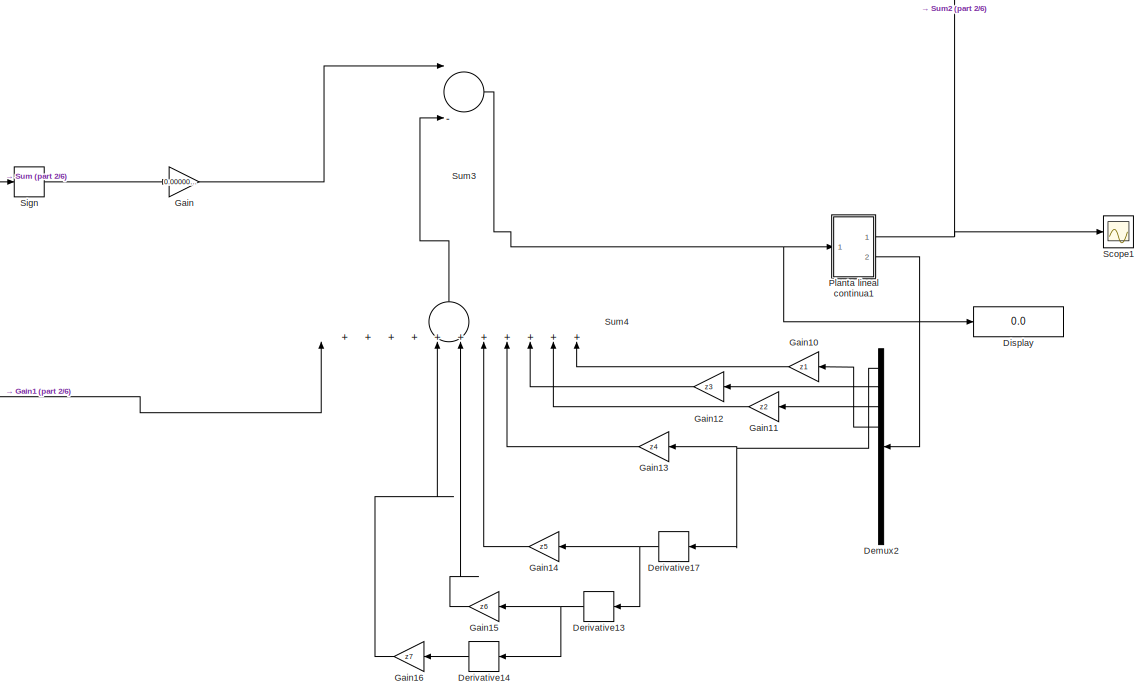
[diagram: root canvas - part 1/6, top left region]
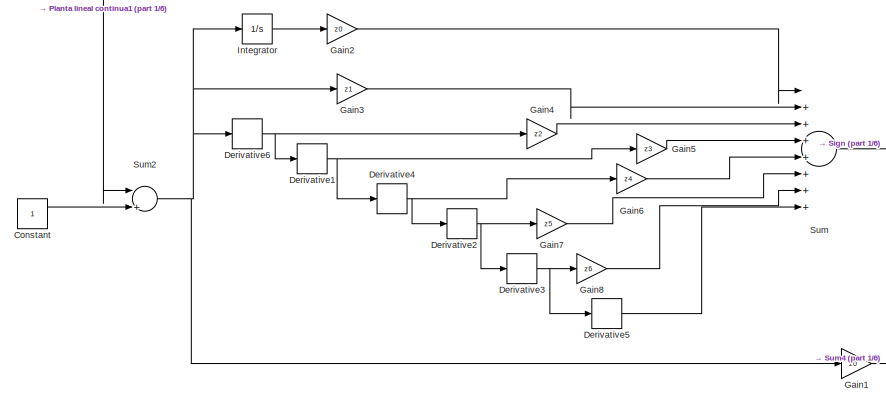
[diagram: root canvas - part 2/6, top left region]
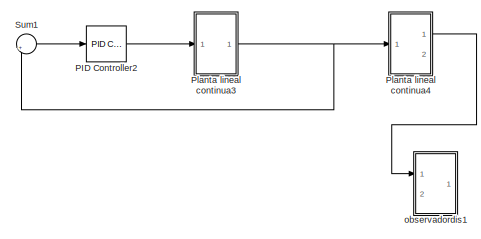
[diagram: root canvas - part 3/6, top right region]
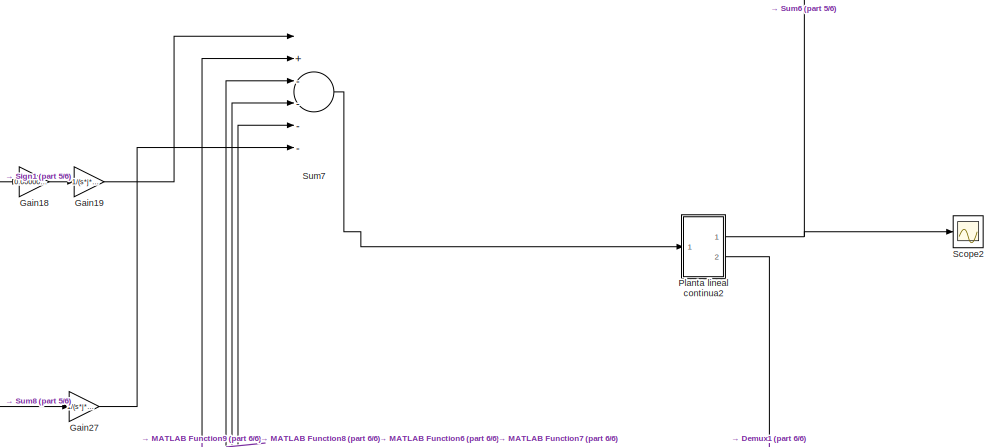
[diagram: root canvas - part 4/6, middle right region]
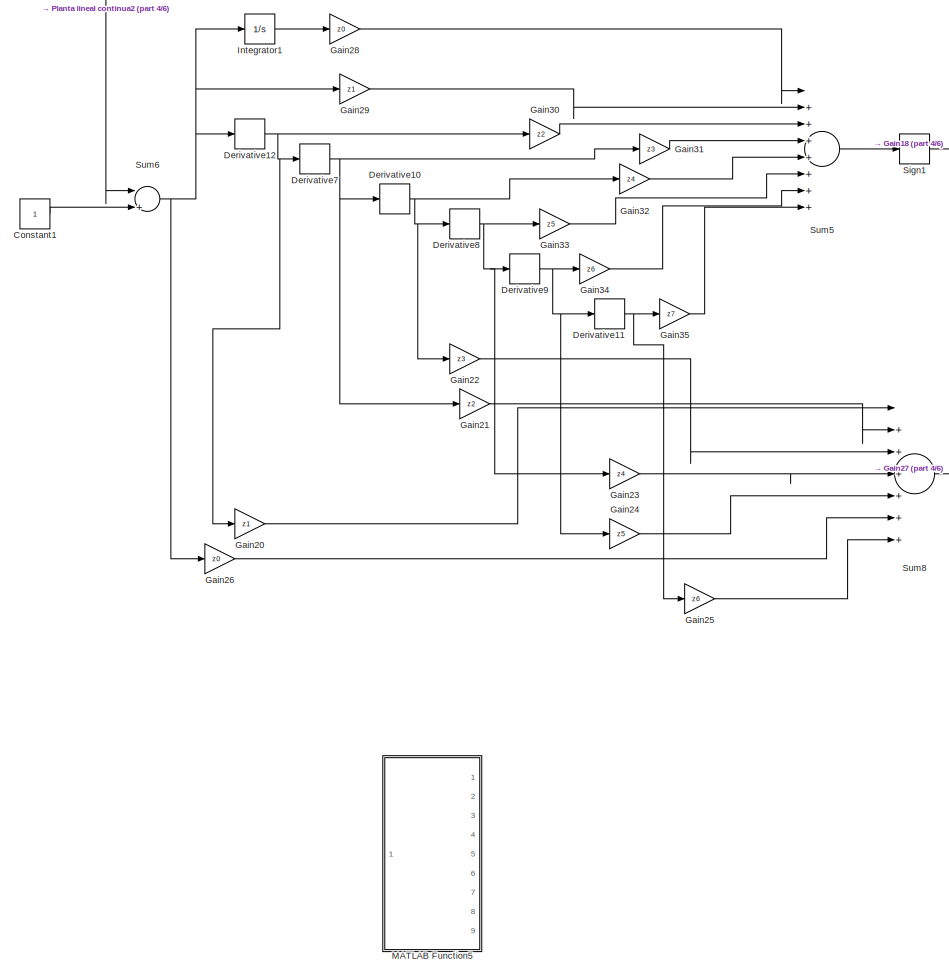
[diagram: root canvas - part 5/6, central region]
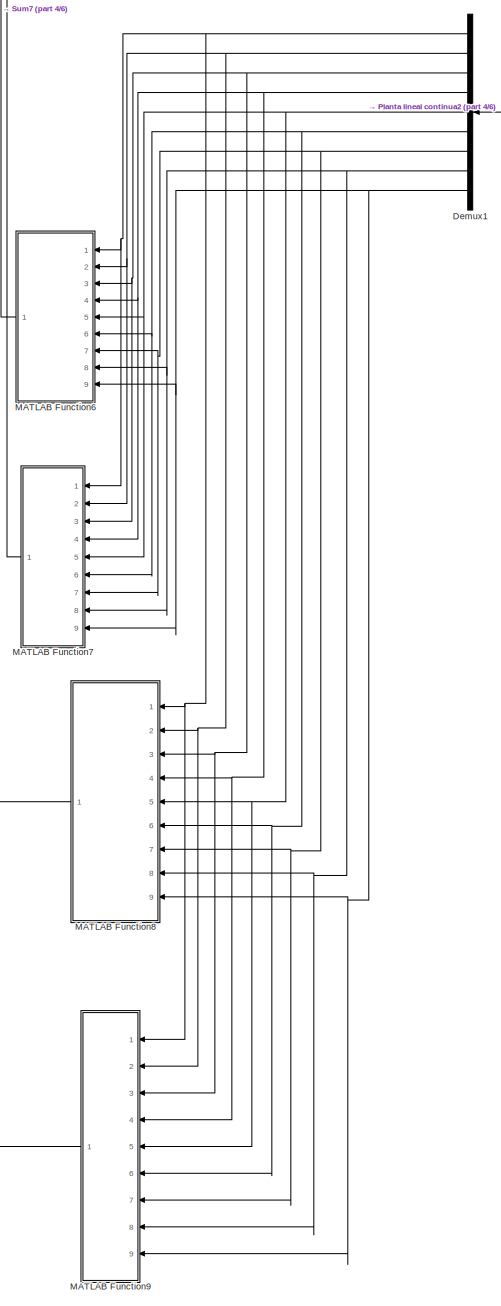
[diagram: root canvas - part 6/6, bottom right region]
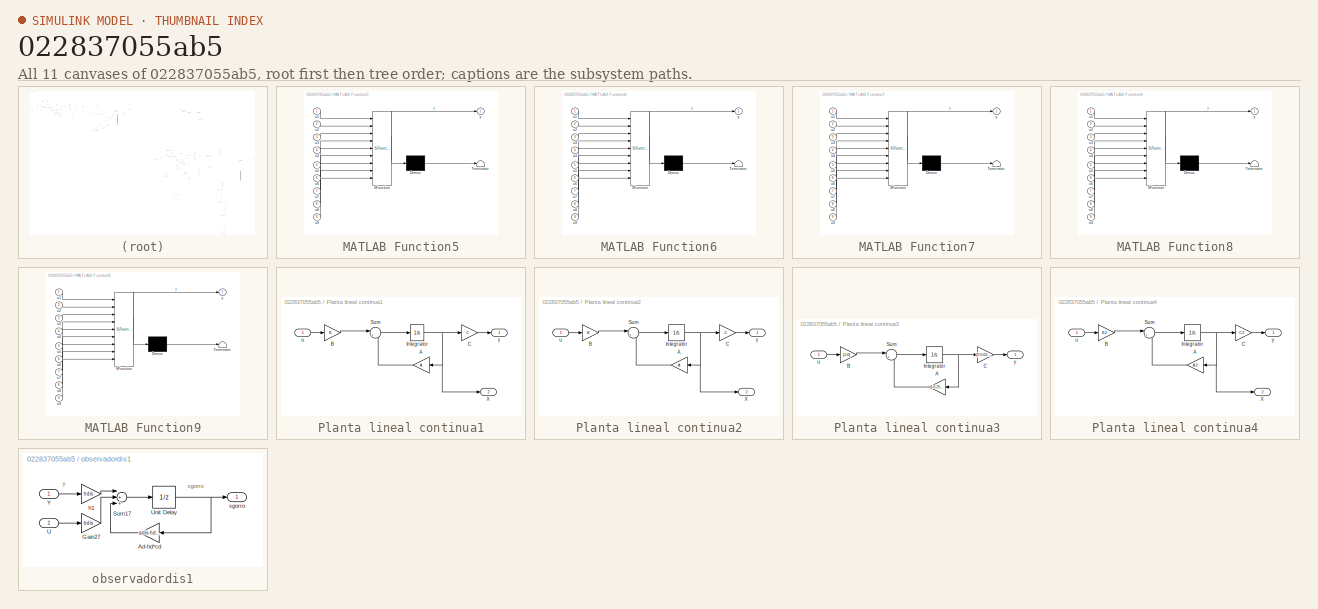
[diagram: thumbnail index - all 11 canvases of the model, root first then tree order]
MODEL slx_022837055ab5
KIND model
CONFIG AbsTol = auto
CONFIG EnableMultiTasking = off
CONFIG FixedStep = auto
CONFIG MaxStep = auto
CONFIG MinStep = auto
CONFIG RelTol = 1e-3
CONFIG SampleTimeConstraint = Unconstrained
CONFIG Solver = VariableStepAuto
CONFIG SolverName = VariableStepAuto
CONFIG StartTime = 0.0
CONFIG StopTime = 1
BLOCK [Constant] Constant
BLOCK [Constant] Constant1
  Commented = on
BLOCK [Demux] Demux1
  Commented = on
  DisplayOption = bar
  Outputs = 9
  Ports = [1, 9]
BLOCK [Demux] Demux2
  DisplayOption = bar
  Outputs = 9
  Ports = [1, 9]
BLOCK [Derivative] Derivative1
BLOCK [Derivative] Derivative10
  Commented = on
BLOCK [Derivative] Derivative11
  Commented = on
BLOCK [Derivative] Derivative12
  Commented = on
BLOCK [Derivative] Derivative13
BLOCK [Derivative] Derivative14
BLOCK [Derivative] Derivative17
BLOCK [Derivative] Derivative2
BLOCK [Derivative] Derivative3
BLOCK [Derivative] Derivative4
BLOCK [Derivative] Derivative5
BLOCK [Derivative] Derivative6
BLOCK [Derivative] Derivative7
  Commented = on
BLOCK [Derivative] Derivative8
  Commented = on
BLOCK [Derivative] Derivative9
  Commented = on
BLOCK [Display] Display
  Decimation = 1
  Ports = [1]
BLOCK [Gain] Gain
  Gain = 0.0000000000001
  OutDataTypeStr = Inherit: Inherit via internal rule
  ParamDataTypeStr = Inherit: Inherit via internal rule
  SaturateOnIntegerOverflow = off
BLOCK [Gain] Gain1
  Gain = z0
  OutDataTypeStr = Inherit: Inherit via internal rule
  ParamDataTypeStr = Inherit: Inherit via internal rule
  SaturateOnIntegerOverflow = off
BLOCK [Gain] Gain10
  Gain = z1
  OutDataTypeStr = Inherit: Inherit via internal rule
  ParamDataTypeStr = Inherit: Inherit via internal rule
  SaturateOnIntegerOverflow = off
BLOCK [Gain] Gain11
  Gain = z2
  OutDataTypeStr = Inherit: Inherit via internal rule
  ParamDataTypeStr = Inherit: Inherit via internal rule
  SaturateOnIntegerOverflow = off
BLOCK [Gain] Gain12
  Gain = z3
  OutDataTypeStr = Inherit: Inherit via internal rule
  ParamDataTypeStr = Inherit: Inherit via internal rule
  SaturateOnIntegerOverflow = off
BLOCK [Gain] Gain13
  Gain = z4
  OutDataTypeStr = Inherit: Inherit via internal rule
  ParamDataTypeStr = Inherit: Inherit via internal rule
  SaturateOnIntegerOverflow = off
BLOCK [Gain] Gain14
  Gain = z5
  OutDataTypeStr = Inherit: Inherit via internal rule
  ParamDataTypeStr = Inherit: Inherit via internal rule
  SaturateOnIntegerOverflow = off
BLOCK [Gain] Gain15
  Gain = z6
  OutDataTypeStr = Inherit: Inherit via internal rule
  ParamDataTypeStr = Inherit: Inherit via internal rule
  SaturateOnIntegerOverflow = off
BLOCK [Gain] Gain16
  Gain = z7
  OutDataTypeStr = Inherit: Inherit via internal rule
  ParamDataTypeStr = Inherit: Inherit via internal rule
  SaturateOnIntegerOverflow = off
BLOCK [Gain] Gain18
  Commented = on
  Gain = 0.0000000000001
  OutDataTypeStr = Inherit: Inherit via internal rule
  ParamDataTypeStr = Inherit: Inherit via internal rule
  SaturateOnIntegerOverflow = off
BLOCK [Gain] Gain19
  Commented = on
  Gain = 1/(s*j*i*h*g*a*g*o*v)
  OutDataTypeStr = Inherit: Inherit via internal rule
  ParamDataTypeStr = Inherit: Inherit via internal rule
  SaturateOnIntegerOverflow = off
BLOCK [Gain] Gain2
  Gain = z0
  OutDataTypeStr = Inherit: Inherit via internal rule
  ParamDataTypeStr = Inherit: Inherit via internal rule
  SaturateOnIntegerOverflow = off
BLOCK [Gain] Gain20
  Commented = on
  Gain = z1
  OutDataTypeStr = Inherit: Inherit via internal rule
  ParamDataTypeStr = Inherit: Inherit via internal rule
  SaturateOnIntegerOverflow = off
BLOCK [Gain] Gain21
  Commented = on
  Gain = z2
  OutDataTypeStr = Inherit: Inherit via internal rule
  ParamDataTypeStr = Inherit: Inherit via internal rule
  SaturateOnIntegerOverflow = off
BLOCK [Gain] Gain22
  Commented = on
  Gain = z3
  OutDataTypeStr = Inherit: Inherit via internal rule
  ParamDataTypeStr = Inherit: Inherit via internal rule
  SaturateOnIntegerOverflow = off
BLOCK [Gain] Gain23
  Commented = on
  Gain = z4
  OutDataTypeStr = Inherit: Inherit via internal rule
  ParamDataTypeStr = Inherit: Inherit via internal rule
  SaturateOnIntegerOverflow = off
BLOCK [Gain] Gain24
  Commented = on
  Gain = z5
  OutDataTypeStr = Inherit: Inherit via internal rule
  ParamDataTypeStr = Inherit: Inherit via internal rule
  SaturateOnIntegerOverflow = off
BLOCK [Gain] Gain25
  Commented = on
  Gain = z6
  OutDataTypeStr = Inherit: Inherit via internal rule
  ParamDataTypeStr = Inherit: Inherit via internal rule
  SaturateOnIntegerOverflow = off
BLOCK [Gain] Gain26
  Commented = on
  Gain = z0
  OutDataTypeStr = Inherit: Inherit via internal rule
  ParamDataTypeStr = Inherit: Inherit via internal rule
  SaturateOnIntegerOverflow = off
BLOCK [Gain] Gain27
  Commented = on
  Gain = 1/(s*j*i*h*g*a*g*o*v)
  OutDataTypeStr = Inherit: Inherit via internal rule
  ParamDataTypeStr = Inherit: Inherit via internal rule
  SaturateOnIntegerOverflow = off
BLOCK [Gain] Gain28
  Commented = on
  Gain = z0
  OutDataTypeStr = Inherit: Inherit via internal rule
  ParamDataTypeStr = Inherit: Inherit via internal rule
  SaturateOnIntegerOverflow = off
BLOCK [Gain] Gain29
  Commented = on
  Gain = z1
  OutDataTypeStr = Inherit: Inherit via internal rule
  ParamDataTypeStr = Inherit: Inherit via internal rule
  SaturateOnIntegerOverflow = off
BLOCK [Gain] Gain3
  Gain = z1
  OutDataTypeStr = Inherit: Inherit via internal rule
  ParamDataTypeStr = Inherit: Inherit via internal rule
  SaturateOnIntegerOverflow = off
BLOCK [Gain] Gain30
  Commented = on
  Gain = z2
  OutDataTypeStr = Inherit: Inherit via internal rule
  ParamDataTypeStr = Inherit: Inherit via internal rule
  SaturateOnIntegerOverflow = off
BLOCK [Gain] Gain31
  Commented = on
  Gain = z3
  OutDataTypeStr = Inherit: Inherit via internal rule
  ParamDataTypeStr = Inherit: Inherit via internal rule
  SaturateOnIntegerOverflow = off
BLOCK [Gain] Gain32
  Commented = on
  Gain = z4
  OutDataTypeStr = Inherit: Inherit via internal rule
  ParamDataTypeStr = Inherit: Inherit via internal rule
  SaturateOnIntegerOverflow = off
BLOCK [Gain] Gain33
  Commented = on
  Gain = z5
  OutDataTypeStr = Inherit: Inherit via internal rule
  ParamDataTypeStr = Inherit: Inherit via internal rule
  SaturateOnIntegerOverflow = off
BLOCK [Gain] Gain34
  Commented = on
  Gain = z6
  OutDataTypeStr = Inherit: Inherit via internal rule
  ParamDataTypeStr = Inherit: Inherit via internal rule
  SaturateOnIntegerOverflow = off
BLOCK [Gain] Gain35
  Commented = on
  Gain = z7
  OutDataTypeStr = Inherit: Inherit via internal rule
  ParamDataTypeStr = Inherit: Inherit via internal rule
  SaturateOnIntegerOverflow = off
BLOCK [Gain] Gain4
  Gain = z2
  OutDataTypeStr = Inherit: Inherit via internal rule
  ParamDataTypeStr = Inherit: Inherit via internal rule
  SaturateOnIntegerOverflow = off
BLOCK [Gain] Gain5
  Gain = z3
  OutDataTypeStr = Inherit: Inherit via internal rule
  ParamDataTypeStr = Inherit: Inherit via internal rule
  SaturateOnIntegerOverflow = off
BLOCK [Gain] Gain6
  Gain = z4
  OutDataTypeStr = Inherit: Inherit via internal rule
  ParamDataTypeStr = Inherit: Inherit via internal rule
  SaturateOnIntegerOverflow = off
BLOCK [Gain] Gain7
  Gain = z5
  OutDataTypeStr = Inherit: Inherit via internal rule
  ParamDataTypeStr = Inherit: Inherit via internal rule
  SaturateOnIntegerOverflow = off
BLOCK [Gain] Gain8
  Gain = z6
  OutDataTypeStr = Inherit: Inherit via internal rule
  ParamDataTypeStr = Inherit: Inherit via internal rule
  SaturateOnIntegerOverflow = off
BLOCK [Integrator] Integrator
  Ports = [1, 1]
BLOCK [Integrator] Integrator1
  Commented = on
  Ports = [1, 1]
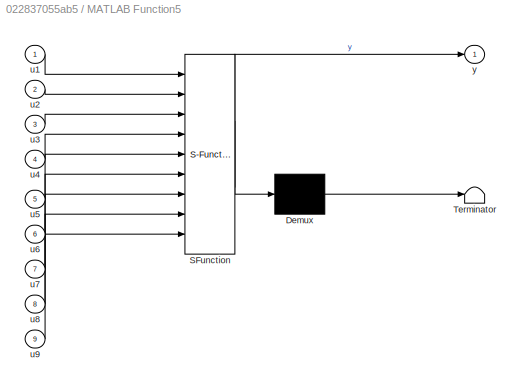
BLOCK [SubSystem] MATLAB Function5
  Commented = on
  ErrorFcn = Stateflow.Translate.translate
  PermitHierarchicalResolution = ExplicitOnly
  Ports = [9, 1]
  RequestExecContextInheritance = off
  SFBlockType = MATLAB Function
  TreatAsAtomicUnit = on
BLOCK [Demux] MATLAB Function5/ Demux 
  Outputs = 1
  Ports = [1, 1]
BLOCK [S-Function] MATLAB Function5/ SFunction 
  EnableBusSupport = on
  FunctionName = sf_sfun
  PortCounts = [9 2]
  Ports = [9, 2]
  SFcnIsStateOwnerBlock = off
  SFunctionDeploymentMode = off
  Tag = Stateflow S-Function funcion_5 6
BLOCK [Terminator] MATLAB Function5/ Terminator 
BLOCK [Inport] MATLAB Function5/u1
  IconDisplay = Port number
BLOCK [Inport] MATLAB Function5/u2
  IconDisplay = Port number
  Port = 2
BLOCK [Inport] MATLAB Function5/u3
  IconDisplay = Port number
  Port = 3
BLOCK [Inport] MATLAB Function5/u4
  IconDisplay = Port number
  Port = 4
BLOCK [Inport] MATLAB Function5/u5
  IconDisplay = Port number
  Port = 5
BLOCK [Inport] MATLAB Function5/u6
  IconDisplay = Port number
  Port = 6
BLOCK [Inport] MATLAB Function5/u7
  IconDisplay = Port number
  Port = 7
BLOCK [Inport] MATLAB Function5/u8
  IconDisplay = Port number
  Port = 8
BLOCK [Inport] MATLAB Function5/u9
  IconDisplay = Port number
  Port = 9
BLOCK [Outport] MATLAB Function5/y
  IconDisplay = Port number
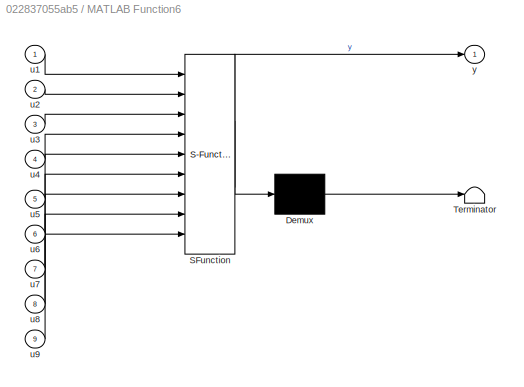
BLOCK [SubSystem] MATLAB Function6
  Commented = on
  ErrorFcn = Stateflow.Translate.translate
  PermitHierarchicalResolution = ExplicitOnly
  Ports = [9, 1]
  RequestExecContextInheritance = off
  SFBlockType = MATLAB Function
  TreatAsAtomicUnit = on
BLOCK [Demux] MATLAB Function6/ Demux 
  Outputs = 1
  Ports = [1, 1]
BLOCK [S-Function] MATLAB Function6/ SFunction 
  EnableBusSupport = on
  FunctionName = sf_sfun
  PortCounts = [9 2]
  Ports = [9, 2]
  SFcnIsStateOwnerBlock = off
  SFunctionDeploymentMode = off
  Tag = Stateflow S-Function funcion_5 7
BLOCK [Terminator] MATLAB Function6/ Terminator 
BLOCK [Inport] MATLAB Function6/u1
  IconDisplay = Port number
BLOCK [Inport] MATLAB Function6/u2
  IconDisplay = Port number
  Port = 2
BLOCK [Inport] MATLAB Function6/u3
  IconDisplay = Port number
  Port = 3
BLOCK [Inport] MATLAB Function6/u4
  IconDisplay = Port number
  Port = 4
BLOCK [Inport] MATLAB Function6/u5
  IconDisplay = Port number
  Port = 5
BLOCK [Inport] MATLAB Function6/u6
  IconDisplay = Port number
  Port = 6
BLOCK [Inport] MATLAB Function6/u7
  IconDisplay = Port number
  Port = 7
BLOCK [Inport] MATLAB Function6/u8
  IconDisplay = Port number
  Port = 8
BLOCK [Inport] MATLAB Function6/u9
  IconDisplay = Port number
  Port = 9
BLOCK [Outport] MATLAB Function6/y
  IconDisplay = Port number
BLOCK [SubSystem] MATLAB Function7
  Commented = on
  ErrorFcn = Stateflow.Translate.translate
  PermitHierarchicalResolution = ExplicitOnly
  Ports = [9, 1]
  RequestExecContextInheritance = off
  SFBlockType = MATLAB Function
  TreatAsAtomicUnit = on
BLOCK [Demux] MATLAB Function7/ Demux 
  Outputs = 1
  Ports = [1, 1]
BLOCK [S-Function] MATLAB Function7/ SFunction 
  EnableBusSupport = on
  FunctionName = sf_sfun
  PortCounts = [9 2]
  Ports = [9, 2]
  SFcnIsStateOwnerBlock = off
  SFunctionDeploymentMode = off
  Tag = Stateflow S-Function funcion_5 8
BLOCK [Terminator] MATLAB Function7/ Terminator 
BLOCK [Inport] MATLAB Function7/u1
  IconDisplay = Port number
BLOCK [Inport] MATLAB Function7/u2
  IconDisplay = Port number
  Port = 2
BLOCK [Inport] MATLAB Function7/u3
  IconDisplay = Port number
  Port = 3
BLOCK [Inport] MATLAB Function7/u4
  IconDisplay = Port number
  Port = 4
BLOCK [Inport] MATLAB Function7/u5
  IconDisplay = Port number
  Port = 5
BLOCK [Inport] MATLAB Function7/u6
  IconDisplay = Port number
  Port = 6
BLOCK [Inport] MATLAB Function7/u7
  IconDisplay = Port number
  Port = 7
BLOCK [Inport] MATLAB Function7/u8
  IconDisplay = Port number
  Port = 8
BLOCK [Inport] MATLAB Function7/u9
  IconDisplay = Port number
  Port = 9
BLOCK [Outport] MATLAB Function7/y
  IconDisplay = Port number
BLOCK [SubSystem] MATLAB Function8
  Commented = on
  ErrorFcn = Stateflow.Translate.translate
  PermitHierarchicalResolution = ExplicitOnly
  Ports = [9, 1]
  RequestExecContextInheritance = off
  SFBlockType = MATLAB Function
  TreatAsAtomicUnit = on
BLOCK [Demux] MATLAB Function8/ Demux 
  Outputs = 1
  Ports = [1, 1]
BLOCK [S-Function] MATLAB Function8/ SFunction 
  EnableBusSupport = on
  FunctionName = sf_sfun
  PortCounts = [9 2]
  Ports = [9, 2]
  SFcnIsStateOwnerBlock = off
  SFunctionDeploymentMode = off
  Tag = Stateflow S-Function funcion_5 9
BLOCK [Terminator] MATLAB Function8/ Terminator 
BLOCK [Inport] MATLAB Function8/u1
  IconDisplay = Port number
BLOCK [Inport] MATLAB Function8/u2
  IconDisplay = Port number
  Port = 2
BLOCK [Inport] MATLAB Function8/u3
  IconDisplay = Port number
  Port = 3
BLOCK [Inport] MATLAB Function8/u4
  IconDisplay = Port number
  Port = 4
BLOCK [Inport] MATLAB Function8/u5
  IconDisplay = Port number
  Port = 5
BLOCK [Inport] MATLAB Function8/u6
  IconDisplay = Port number
  Port = 6
BLOCK [Inport] MATLAB Function8/u7
  IconDisplay = Port number
  Port = 7
BLOCK [Inport] MATLAB Function8/u8
  IconDisplay = Port number
  Port = 8
BLOCK [Inport] MATLAB Function8/u9
  IconDisplay = Port number
  Port = 9
BLOCK [Outport] MATLAB Function8/y
  IconDisplay = Port number
BLOCK [SubSystem] MATLAB Function9
  Commented = on
  ErrorFcn = Stateflow.Translate.translate
  PermitHierarchicalResolution = ExplicitOnly
  Ports = [9, 1]
  RequestExecContextInheritance = off
  SFBlockType = MATLAB Function
  TreatAsAtomicUnit = on
BLOCK [Demux] MATLAB Function9/ Demux 
  Outputs = 1
  Ports = [1, 1]
BLOCK [S-Function] MATLAB Function9/ SFunction 
  EnableBusSupport = on
  FunctionName = sf_sfun
  PortCounts = [9 2]
  Ports = [9, 2]
  SFcnIsStateOwnerBlock = off
  SFunctionDeploymentMode = off
  Tag = Stateflow S-Function funcion_5 10
BLOCK [Terminator] MATLAB Function9/ Terminator 
BLOCK [Inport] MATLAB Function9/u1
  IconDisplay = Port number
BLOCK [Inport] MATLAB Function9/u2
  IconDisplay = Port number
  Port = 2
BLOCK [Inport] MATLAB Function9/u3
  IconDisplay = Port number
  Port = 3
BLOCK [Inport] MATLAB Function9/u4
  IconDisplay = Port number
  Port = 4
BLOCK [Inport] MATLAB Function9/u5
  IconDisplay = Port number
  Port = 5
BLOCK [Inport] MATLAB Function9/u6
  IconDisplay = Port number
  Port = 6
BLOCK [Inport] MATLAB Function9/u7
  IconDisplay = Port number
  Port = 7
BLOCK [Inport] MATLAB Function9/u8
  IconDisplay = Port number
  Port = 8
BLOCK [Inport] MATLAB Function9/u9
  IconDisplay = Port number
  Port = 9
BLOCK [Outport] MATLAB Function9/y
  IconDisplay = Port number
BLOCK [Reference] PID Controller2  REF=simulink/Continuous/PID Controller
  Commented = on
  Ports = [1, 1]
  SourceBlock = simulink/Continuous/PID Controller
  SourceProductBaseCode = SL
  SourceProductName = Simulink
  SourceType = PID 1dof
BLOCK [SubSystem] Planta lineal continua1
  Ports = [1, 2]
  RequestExecContextInheritance = off
BLOCK [Gain] Planta lineal continua1/A
  Gain = A
  Multiplication = Matrix(K*u) (u vector)
  OutDataTypeStr = Inherit: Inherit via internal rule
  ParamDataTypeStr = Inherit: Inherit via internal rule
  SaturateOnIntegerOverflow = off
BLOCK [Gain] Planta lineal continua1/B
  Gain = B
  Multiplication = Matrix(K*u) (u vector)
  OutDataTypeStr = Inherit: Inherit via internal rule
  ParamDataTypeStr = Inherit: Inherit via internal rule
  SaturateOnIntegerOverflow = off
BLOCK [Gain] Planta lineal continua1/C
  Gain = C
  Multiplication = Matrix(K*u) (u vector)
  OutDataTypeStr = Inherit: Inherit via internal rule
  ParamDataTypeStr = Inherit: Inherit via internal rule
  SaturateOnIntegerOverflow = off
BLOCK [Integrator] Planta lineal continua1/Integrator
  InitialCondition = 0.000001
  Ports = [1, 1]
BLOCK [Sum] Planta lineal continua1/Sum
  IconShape = round
  InputSameDT = off
  Inputs = |++
  OutDataTypeStr = Inherit: Inherit via internal rule
  Ports = [2, 1]
  SaturateOnIntegerOverflow = off
BLOCK [Outport] Planta lineal continua1/X
  IconDisplay = Port number
  Port = 2
BLOCK [Inport] Planta lineal continua1/u
  IconDisplay = Port number
BLOCK [Outport] Planta lineal continua1/y
  IconDisplay = Port number
BLOCK [SubSystem] Planta lineal continua2
  Commented = on
  Ports = [1, 2]
  RequestExecContextInheritance = off
BLOCK [Gain] Planta lineal continua2/A
  Gain = A
  Multiplication = Matrix(K*u) (u vector)
  OutDataTypeStr = Inherit: Inherit via internal rule
  ParamDataTypeStr = Inherit: Inherit via internal rule
  SaturateOnIntegerOverflow = off
BLOCK [Gain] Planta lineal continua2/B
  Gain = B
  Multiplication = Matrix(K*u) (u vector)
  OutDataTypeStr = Inherit: Inherit via internal rule
  ParamDataTypeStr = Inherit: Inherit via internal rule
  SaturateOnIntegerOverflow = off
BLOCK [Gain] Planta lineal continua2/C
  Gain = C
  Multiplication = Matrix(K*u) (u vector)
  OutDataTypeStr = Inherit: Inherit via internal rule
  ParamDataTypeStr = Inherit: Inherit via internal rule
  SaturateOnIntegerOverflow = off
BLOCK [Integrator] Planta lineal continua2/Integrator
  Ports = [1, 1]
BLOCK [Sum] Planta lineal continua2/Sum
  IconShape = round
  InputSameDT = off
  Inputs = |++
  OutDataTypeStr = Inherit: Inherit via internal rule
  Ports = [2, 1]
  SaturateOnIntegerOverflow = off
BLOCK [Outport] Planta lineal continua2/X
  IconDisplay = Port number
  Port = 2
BLOCK [Inport] Planta lineal continua2/u
  IconDisplay = Port number
BLOCK [Outport] Planta lineal continua2/y
  IconDisplay = Port number
BLOCK [SubSystem] Planta lineal continua3
  Commented = on
  Ports = [1, 1]
  RequestExecContextInheritance = off
BLOCK [Gain] Planta lineal continua3/A
  Gain = [[-0.25,-0.025];[1 0]]
  Multiplication = Matrix(K*u) (u vector)
  OutDataTypeStr = Inherit: Inherit via internal rule
  ParamDataTypeStr = Inherit: Inherit via internal rule
  SaturateOnIntegerOverflow = off
BLOCK [Gain] Planta lineal continua3/B
  Gain = [1;0]
  Multiplication = Matrix(K*u) (u vector)
  OutDataTypeStr = Inherit: Inherit via internal rule
  ParamDataTypeStr = Inherit: Inherit via internal rule
  SaturateOnIntegerOverflow = off
BLOCK [Gain] Planta lineal continua3/C
  Gain = [0 0.025]
  Multiplication = Matrix(K*u) (u vector)
  OutDataTypeStr = Inherit: Inherit via internal rule
  ParamDataTypeStr = Inherit: Inherit via internal rule
  SaturateOnIntegerOverflow = off
BLOCK [Integrator] Planta lineal continua3/Integrator
  Ports = [1, 1]
BLOCK [Sum] Planta lineal continua3/Sum
  IconShape = round
  InputSameDT = off
  Inputs = |++
  OutDataTypeStr = Inherit: Inherit via internal rule
  Ports = [2, 1]
  SaturateOnIntegerOverflow = off
BLOCK [Inport] Planta lineal continua3/u
  IconDisplay = Port number
BLOCK [Outport] Planta lineal continua3/y
  IconDisplay = Port number
BLOCK [SubSystem] Planta lineal continua4
  Commented = on
  Ports = [1, 2]
  RequestExecContextInheritance = off
BLOCK [Gain] Planta lineal continua4/A
  Gain = A2
  Multiplication = Matrix(K*u) (u vector)
  OutDataTypeStr = Inherit: Inherit via internal rule
  ParamDataTypeStr = Inherit: Inherit via internal rule
  SaturateOnIntegerOverflow = off
BLOCK [Gain] Planta lineal continua4/B
  Gain = B2
  Multiplication = Matrix(K*u) (u vector)
  OutDataTypeStr = Inherit: Inherit via internal rule
  ParamDataTypeStr = Inherit: Inherit via internal rule
  SaturateOnIntegerOverflow = off
BLOCK [Gain] Planta lineal continua4/C
  Gain = C2
  Multiplication = Matrix(K*u) (u vector)
  OutDataTypeStr = Inherit: Inherit via internal rule
  ParamDataTypeStr = Inherit: Inherit via internal rule
  SaturateOnIntegerOverflow = off
BLOCK [Integrator] Planta lineal continua4/Integrator
  Ports = [1, 1]
BLOCK [Sum] Planta lineal continua4/Sum
  IconShape = round
  InputSameDT = off
  Inputs = |++
  OutDataTypeStr = Inherit: Inherit via internal rule
  Ports = [2, 1]
  SaturateOnIntegerOverflow = off
BLOCK [Outport] Planta lineal continua4/X
  IconDisplay = Port number
  Port = 2
BLOCK [Inport] Planta lineal continua4/u
  IconDisplay = Port number
BLOCK [Outport] Planta lineal continua4/y
  IconDisplay = Port number
BLOCK [Scope] Scope1
  Floating = off
  NumInputPorts = 1
  Ports = [1]
  ScopeSpecificationString = Simulink.scopes.TimeScopeBlockCfg('CurrentConfiguration', extmgr.ConfigurationSet(extmgr.Configuration('Core','General UI',true),extmgr.Configuration('Core','Source UI',true),extmgr.Configuration('Sources','WiredSimulink',true,'DataLoggingVariableName','ScopeData1'),extmgr.Configuration('Visuals','Time Domain',true,'SerializedDisplays',{struct('MinYLimReal','0.00000000000011519999999999995','MaxYL...<+1599ch>
BLOCK [Scope] Scope2
  Commented = on
  Floating = off
  NumInputPorts = 1
  Ports = [1]
  ScopeSpecificationString = Simulink.scopes.TimeScopeBlockCfg('CurrentConfiguration', extmgr.ConfigurationSet(extmgr.Configuration('Core','General UI',true),extmgr.Configuration('Core','Source UI',true),extmgr.Configuration('Sources','WiredSimulink',true),extmgr.Configuration('Visuals','Time Domain',true,'SerializedDisplays',{struct('MinYLimReal','-18727581874838545331211490230263663827358826282343801671842188964971840685028...<+2925ch>
BLOCK [Signum] Sign
  ZeroCross = off
BLOCK [Signum] Sign1
  Commented = on
  ZeroCross = off
BLOCK [Sum] Sum
  InputSameDT = off
  Inputs = |++++++++
  OutDataTypeStr = Inherit: Inherit via internal rule
  Ports = [8, 1]
  SaturateOnIntegerOverflow = off
BLOCK [Sum] Sum1
  Commented = on
  IconShape = round
  InputSameDT = off
  Inputs = |+-
  OutDataTypeStr = Inherit: Inherit via internal rule
  Ports = [2, 1]
  SaturateOnIntegerOverflow = off
BLOCK [Sum] Sum2
  InputSameDT = off
  Inputs = |+-
  OutDataTypeStr = Inherit: Inherit via internal rule
  Ports = [2, 1]
  SaturateOnIntegerOverflow = off
BLOCK [Sum] Sum3
  InputSameDT = off
  Inputs = |--
  OutDataTypeStr = Inherit: Inherit via internal rule
  Ports = [2, 1]
  SaturateOnIntegerOverflow = off
BLOCK [Sum] Sum4
  InputSameDT = off
  Inputs = |++++++++++++
  OutDataTypeStr = Inherit: Inherit via internal rule
  Ports = [12, 1]
  SaturateOnIntegerOverflow = off
BLOCK [Sum] Sum5
  Commented = on
  InputSameDT = off
  Inputs = |++++++++
  OutDataTypeStr = Inherit: Inherit via internal rule
  Ports = [8, 1]
  SaturateOnIntegerOverflow = off
BLOCK [Sum] Sum6
  Commented = on
  InputSameDT = off
  Inputs = |+-
  OutDataTypeStr = Inherit: Inherit via internal rule
  Ports = [2, 1]
  SaturateOnIntegerOverflow = off
BLOCK [Sum] Sum7
  Commented = on
  InputSameDT = off
  Inputs = |+-----
  OutDataTypeStr = Inherit: Inherit via internal rule
  Ports = [6, 1]
  SaturateOnIntegerOverflow = off
BLOCK [Sum] Sum8
  Commented = on
  InputSameDT = off
  Inputs = |+++++++
  OutDataTypeStr = Inherit: Inherit via internal rule
  Ports = [7, 1]
  SaturateOnIntegerOverflow = off
BLOCK [SubSystem] observadordis1
  Commented = on
  Ports = [2, 1]
  RequestExecContextInheritance = off
BLOCK [Gain] observadordis1/Ad-hd*cd
  Gain = adis-hdis*cdis
  Multiplication = Matrix(K*u) (u vector)
  OutDataTypeStr = Inherit: Inherit via internal rule
  ParamDataTypeStr = Inherit: Inherit via internal rule
  SampleTime = tm
  SaturateOnIntegerOverflow = off
BLOCK [Gain] observadordis1/Gain27
  Gain = bdis
  Multiplication = Matrix(K*u) (u vector)
  OutDataTypeStr = Inherit: Inherit via internal rule
  ParamDataTypeStr = Inherit: Inherit via internal rule
  SampleTime = tm
  SaturateOnIntegerOverflow = off
BLOCK [Sum] observadordis1/Sum17
  InputSameDT = off
  Inputs = |+++
  OutDataTypeStr = Inherit: Inherit via internal rule
  Ports = [3, 1]
  SaturateOnIntegerOverflow = off
BLOCK [Inport] observadordis1/U
  IconDisplay = Port number
  Port = 2
BLOCK [UnitDelay] observadordis1/Unit Delay
  HasFrameUpgradeWarning = on
  SampleTime = tm
BLOCK [Inport] observadordis1/Y
  IconDisplay = Port number
BLOCK [Gain] observadordis1/h1
  Gain = hdis
  Multiplication = Matrix(K*u) (u vector)
  OutDataTypeStr = Inherit: Inherit via internal rule
  ParamDataTypeStr = Inherit: Inherit via internal rule
  SampleTime = tm
  SaturateOnIntegerOverflow = off
BLOCK [Outport] observadordis1/xgorro
  IconDisplay = Port number
ANNOTATION observadordis1: xgorro
ANNOTATION observadordis1: y
LINE Constant1:1 -> Sum6:2
LINE Constant:1 -> Sum2:2
NET Demux1:1 -> MATLAB Function6:1, MATLAB Function7:1, MATLAB Function8:1, MATLAB Function9:1
NET Demux1:2 -> MATLAB Function6:2, MATLAB Function7:2, MATLAB Function8:2, MATLAB Function9:2
NET Demux1:3 -> MATLAB Function6:3, MATLAB Function7:3, MATLAB Function8:3, MATLAB Function9:3
NET Demux1:4 -> MATLAB Function6:4, MATLAB Function7:4, MATLAB Function8:4, MATLAB Function9:4
NET Demux1:5 -> MATLAB Function6:5, MATLAB Function7:5, MATLAB Function8:5, MATLAB Function9:5
NET Demux1:6 -> MATLAB Function6:6, MATLAB Function7:6, MATLAB Function8:6, MATLAB Function9:6
NET Demux1:7 -> MATLAB Function6:7, MATLAB Function7:7, MATLAB Function8:7, MATLAB Function9:7
NET Demux1:8 -> MATLAB Function6:8, MATLAB Function7:8, MATLAB Function8:8, MATLAB Function9:8
NET Demux1:9 -> MATLAB Function6:9, MATLAB Function7:9, MATLAB Function8:9, MATLAB Function9:9
NET Demux2:1 -> Derivative17:1, Gain13:1
LINE Demux2:2 -> Gain12:1
LINE Demux2:3 -> Gain11:1
LINE Demux2:4 -> Gain10:1
NET Derivative10:1 -> Derivative8:1, Gain22:1, Gain32:1
NET Derivative11:1 -> Gain25:1, Gain35:1
NET Derivative12:1 -> Derivative7:1, Gain20:1, Gain30:1
NET Derivative13:1 -> Derivative14:1, Gain15:1
LINE Derivative14:1 -> Gain16:1
NET Derivative17:1 -> Derivative13:1, Gain14:1
NET Derivative1:1 -> Derivative4:1, Gain5:1
NET Derivative2:1 -> Derivative3:1, Gain7:1
NET Derivative3:1 -> Derivative5:1, Gain8:1
NET Derivative4:1 -> Derivative2:1, Gain6:1
LINE Derivative5:1 -> Sum:8
NET Derivative6:1 -> Derivative1:1, Gain4:1
NET Derivative7:1 -> Derivative10:1, Gain21:1, Gain31:1
NET Derivative8:1 -> Derivative9:1, Gain23:1, Gain33:1
NET Derivative9:1 -> Derivative11:1, Gain24:1, Gain34:1
LINE Gain10:1 -> Sum4:12
LINE Gain11:1 -> Sum4:11
LINE Gain12:1 -> Sum4:10
LINE Gain13:1 -> Sum4:9
LINE Gain14:1 -> Sum4:8
LINE Gain15:1 -> Sum4:7
LINE Gain16:1 -> Sum4:6
LINE Gain18:1 -> Gain19:1
LINE Gain19:1 -> Sum7:1
LINE Gain1:1 -> Sum4:1
LINE Gain20:1 -> Sum8:1
LINE Gain21:1 -> Sum8:2
LINE Gain22:1 -> Sum8:3
LINE Gain23:1 -> Sum8:4
LINE Gain24:1 -> Sum8:5
LINE Gain25:1 -> Sum8:7
LINE Gain26:1 -> Sum8:6
LINE Gain27:1 -> Sum7:6
LINE Gain28:1 -> Sum5:1
LINE Gain29:1 -> Sum5:2
LINE Gain2:1 -> Sum:1
LINE Gain30:1 -> Sum5:3
LINE Gain31:1 -> Sum5:4
LINE Gain32:1 -> Sum5:5
LINE Gain33:1 -> Sum5:6
LINE Gain34:1 -> Sum5:7
LINE Gain35:1 -> Sum5:8
LINE Gain3:1 -> Sum:2
LINE Gain4:1 -> Sum:3
LINE Gain5:1 -> Sum:4
LINE Gain6:1 -> Sum:5
LINE Gain7:1 -> Sum:6
LINE Gain8:1 -> Sum:7
LINE Gain:1 -> Sum3:1
LINE Integrator1:1 -> Gain28:1
LINE Integrator:1 -> Gain2:1
LINE MATLAB Function6:1 -> Sum7:4
LINE MATLAB Function7:1 -> Sum7:5
LINE MATLAB Function8:1 -> Sum7:3
LINE MATLAB Function9:1 -> Sum7:2
LINE PID Controller2:1 -> Planta lineal continua3:1
LINE Planta lineal continua1/A:1 -> Planta lineal continua1/Sum:2
LINE Planta lineal continua1/B:1 -> Planta lineal continua1/Sum:1
LINE Planta lineal continua1/C:1 -> Planta lineal continua1/y:1
NET Planta lineal continua1/Integrator:1 -> Planta lineal continua1/A:1, Planta lineal continua1/C:1, Planta lineal continua1/X:1
LINE Planta lineal continua1/Sum:1 -> Planta lineal continua1/Integrator:1
LINE Planta lineal continua1/u:1 -> Planta lineal continua1/B:1
NET Planta lineal continua1:1 -> Scope1:1, Sum2:1
LINE Planta lineal continua1:2 -> Demux2:1
LINE Planta lineal continua2/A:1 -> Planta lineal continua2/Sum:2
LINE Planta lineal continua2/B:1 -> Planta lineal continua2/Sum:1
LINE Planta lineal continua2/C:1 -> Planta lineal continua2/y:1
NET Planta lineal continua2/Integrator:1 -> Planta lineal continua2/A:1, Planta lineal continua2/C:1, Planta lineal continua2/X:1
LINE Planta lineal continua2/Sum:1 -> Planta lineal continua2/Integrator:1
LINE Planta lineal continua2/u:1 -> Planta lineal continua2/B:1
NET Planta lineal continua2:1 -> Scope2:1, Sum6:1
LINE Planta lineal continua2:2 -> Demux1:1
LINE Planta lineal continua3/A:1 -> Planta lineal continua3/Sum:2
LINE Planta lineal continua3/B:1 -> Planta lineal continua3/Sum:1
LINE Planta lineal continua3/C:1 -> Planta lineal continua3/y:1
NET Planta lineal continua3/Integrator:1 -> Planta lineal continua3/A:1, Planta lineal continua3/C:1
LINE Planta lineal continua3/Sum:1 -> Planta lineal continua3/Integrator:1
LINE Planta lineal continua3/u:1 -> Planta lineal continua3/B:1
NET Planta lineal continua3:1 -> Planta lineal continua4:1, Sum1:2
LINE Planta lineal continua4/A:1 -> Planta lineal continua4/Sum:2
LINE Planta lineal continua4/B:1 -> Planta lineal continua4/Sum:1
LINE Planta lineal continua4/C:1 -> Planta lineal continua4/y:1
NET Planta lineal continua4/Integrator:1 -> Planta lineal continua4/A:1, Planta lineal continua4/C:1, Planta lineal continua4/X:1
LINE Planta lineal continua4/Sum:1 -> Planta lineal continua4/Integrator:1
LINE Planta lineal continua4/u:1 -> Planta lineal continua4/B:1
LINE Planta lineal continua4:1 -> observadordis1:1
LINE Sign1:1 -> Gain18:1
LINE Sign:1 -> Gain:1
LINE Sum1:1 -> PID Controller2:1
NET Sum2:1 -> Derivative6:1, Gain1:1, Gain3:1, Integrator:1
NET Sum3:1 -> Display:1, Planta lineal continua1:1
LINE Sum4:1 -> Sum3:2
LINE Sum5:1 -> Sign1:1
NET Sum6:1 -> Derivative12:1, Gain26:1, Gain29:1, Integrator1:1
LINE Sum7:1 -> Planta lineal continua2:1
LINE Sum8:1 -> Gain27:1
LINE Sum:1 -> Sign:1
LINE observadordis1/Ad-hd*cd:1 -> observadordis1/Sum17:3
LINE observadordis1/Gain27:1 -> observadordis1/Sum17:2
LINE observadordis1/Sum17:1 -> observadordis1/Unit Delay:1
LINE observadordis1/U:1 -> observadordis1/Gain27:1
NET observadordis1/Unit Delay:1 -> observadordis1/Ad-hd*cd:1, observadordis1/xgorro:1
LINE observadordis1/Y:1 -> observadordis1/h1:1
LINE observadordis1/h1:1 -> observadordis1/Sum17:1
note: NET lines group one-source signal fan-out (src -> all destinations, sorted); 1:1 wires keep LINE
CHART MATLAB Function5 states=1 transitions=1
  STATE_LABEL 'eML_blk_kernel()'
  STATE_LABEL 'SCRIPT:\nfunction y = fcn(u1,u2,u3,u4,u5,u6,u7,u8,u9)\n  a=1.1520e-07\n b=-2.0000e-01\n c=-1.6000e-02  \n d=-6.4000e-04  \n e=-1.2800e-05  \n f=-1.0240e-07 \n g=2.5000e-02\n h=1.0000e+00\n i=1.0000e+00\n j=1.0000e+00\n k=1.0000e+00\n l=-2.5000e-01\n m=-3.3141e+00\n n=-4.3146e+00\n o=1.0000e+00\n p=1.0000e+00\n q=-2.9862e+00\n r=-4.3146e+00\n s=-3.1408e-02\n t=1.3156e+02\n u=1.1945e+02\n v=1.2563e+00\ny = s*j*i*h*g*a*a*(a...<+175ch>'
CHART MATLAB Function6 states=1 transitions=1
  STATE_LABEL 'eML_blk_kernel()'
  STATE_LABEL 'SCRIPT:\nfunction y = fcn(u1,u2,u3,u4,u5,u6,u7,u8,u9)\na=1.1520e-07\n b=-2.0000e-01\n c=-1.6000e-02  \n d=-6.4000e-04  \n e=-1.2800e-05  \n f=-1.0240e-07 \n g=2.5000e-02\n h=1.0000e+00\n i=1.0000e+00\n j=1.0000e+00\n k=1.0000e+00\n l=-2.5000e-01\n m=-3.3141e+00\n n=-4.3146e+00\n o=1.0000e+00\n p=1.0000e+00\n q=-2.9862e+00\n r=-4.3146e+00\n s=-3.1408e-02\n t=1.3156e+02\n u=1.1945e+02\n v=1.2563e+00\ny = a/(g*o*v)*(a*u1+b*...<+25ch>'
CHART MATLAB Function7 states=1 transitions=1
  STATE_LABEL 'eML_blk_kernel()'
  STATE_LABEL 'SCRIPT:\nfunction y = fcn(u1,u2,u3,u4,u5,u6,u7,u8,u9)\na=1.1520e-07\n b=-2.0000e-01\n c=-1.6000e-02  \n d=-6.4000e-04  \n e=-1.2800e-05  \n f=-1.0240e-07 \n g=2.5000e-02\n h=1.0000e+00\n i=1.0000e+00\n j=1.0000e+00\n k=1.0000e+00\n l=-2.5000e-01\n m=-3.3141e+00\n n=-4.3146e+00\n o=1.0000e+00\n p=1.0000e+00\n q=-2.9862e+00\n r=-4.3146e+00\n s=-3.1408e-02\n t=1.3156e+02\n u=1.1945e+02\n v=1.2563e+00\ny = 1/(g*o*v)*(b*g*u1+...<+30ch>'
CHART MATLAB Function8 states=1 transitions=1
  STATE_LABEL 'eML_blk_kernel()'
  STATE_LABEL 'SCRIPT:\nfunction y= fcn(u1,u2,u3,u4,u5,u6,u7,u8,u9)\na=1.1520e-07\n b=-2.0000e-01\n c=-1.6000e-02  \n d=-6.4000e-04  \n e=-1.2800e-05  \n f=-1.0240e-07 \n g=2.5000e-02\n h=1.0000e+00\n i=1.0000e+00\n j=1.0000e+00\n k=1.0000e+00\n l=-2.5000e-01\n m=-3.3141e+00\n n=-4.3146e+00\n o=1.0000e+00\n p=1.0000e+00\n q=-2.9862e+00\n r=-4.3146e+00\n s=-3.1408e-02\n t=1.3156e+02\n u=1.1945e+02\n v=1.2563e+00\ny = 1/(g*o*v)*(d*h*g*u1...<+17ch>'
CHART MATLAB Function9 states=1 transitions=1
  STATE_LABEL 'eML_blk_kernel()'
  STATE_LABEL 'SCRIPT:\nfunction y = fcn(u1,u2,u3,u4,u5,u6,u7,u8,u9)\na=1.1520e-07\n b=-2.0000e-01\n c=-1.6000e-02  \n d=-6.4000e-04  \n e=-1.2800e-05  \n f=-1.0240e-07 \n g=2.5000e-02\n h=1.0000e+00\n i=1.0000e+00\n j=1.0000e+00\n k=1.0000e+00\n l=-2.5000e-01\n m=-3.3141e+00\n n=-4.3146e+00\n o=1.0000e+00\n p=1.0000e+00\n q=-2.9862e+00\n r=-4.3146e+00\n s=-3.1408e-02\n t=1.3156e+02\n u=1.1945e+02\n v=1.2563e+00\ny = 1/(v)*(k*u6+l*u7+m...<+11ch>'
